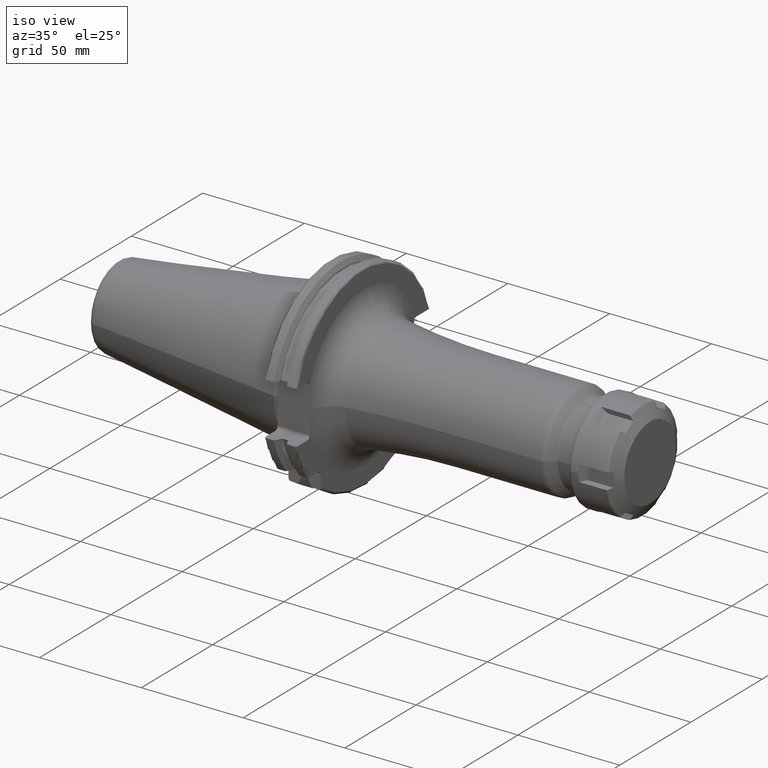
[diagram: clean part render]
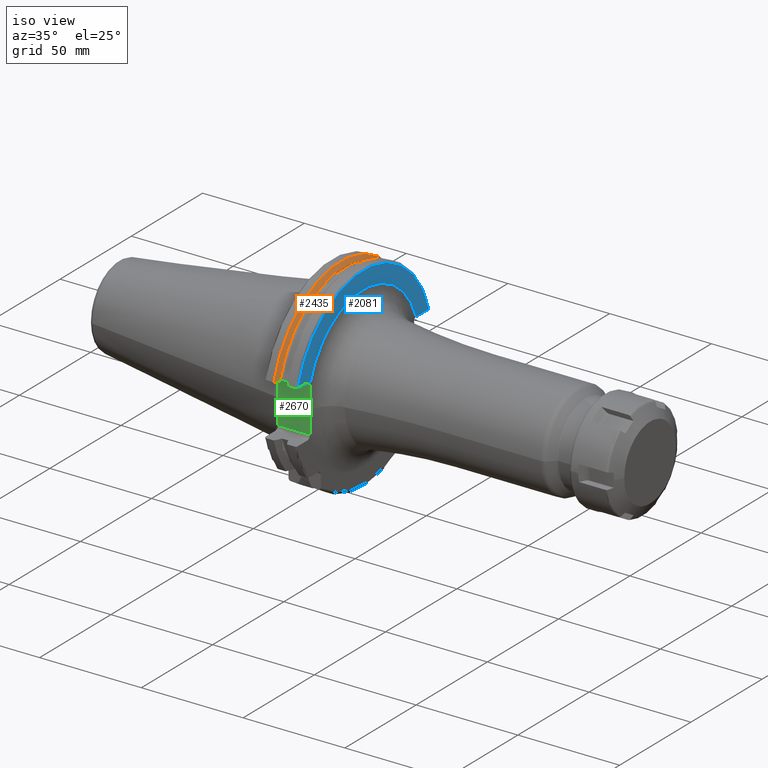
[diagram: same view with three faces highlighted in distinct colors, each labeled with its STEP entity id]
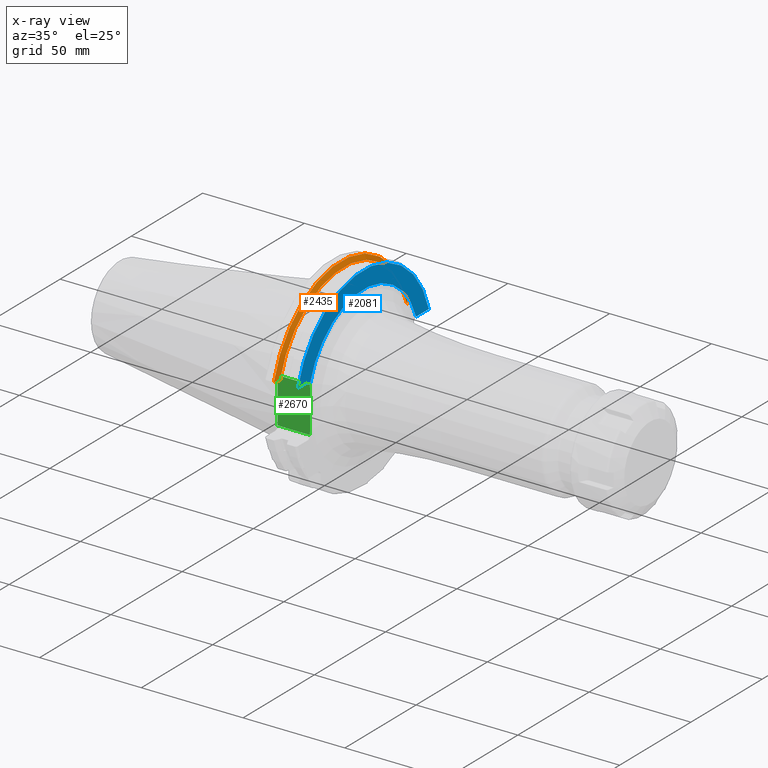
[diagram: x-ray of the same camera — body ghosted, the three highlighted faces saturated]
A machine part, iso view with three faces highlighted in distinct colors.
The next image is the same camera in x-ray (body ghosted, the three faces saturated) — at least one of them is partly hidden behind the body in this view.
Their STEP definitions:

[orange] entity #2435 — the highlighted conical surface has half-angle 60 deg.
#548=CARTESIAN_POINT('',(9.2625E0,0.E0,0.E0));
#549=DIRECTION('',(1.E0,0.E0,0.E0));
#550=DIRECTION('',(0.E0,9.606411165078E-1,2.777924499957E-1));
#551=AXIS2_PLACEMENT_3D('',#548,#549,#550);
#623=CARTESIAN_POINT('',(7.934621614173E0,0.E0,0.E0));
#624=DIRECTION('',(1.E0,0.E0,0.E0));
#625=DIRECTION('',(0.E0,9.643354064066E-1,2.646832521159E-1));
#626=AXIS2_PLACEMENT_3D('',#623,#624,#625);
#650=CARTESIAN_POINT('',(7.934621614173E0,4.699929686974E1,1.29E1));
#651=CARTESIAN_POINT('',(8.085480915039E0,4.672833723043E1,1.29E1));
#652=CARTESIAN_POINT('',(8.384988643814E0,4.619006057422E1,1.29E1));
#653=CARTESIAN_POINT('',(8.827579780447E0,4.539363402665E1,1.29E1));
#654=CARTESIAN_POINT('',(9.118260754177E0,4.486988275438E1,1.29E1));
#655=CARTESIAN_POINT('',(9.2625E0,4.460981716077E1,1.29E1));
#657=CARTESIAN_POINT('',(9.2625E0,-4.460981716077E1,1.29E1));
#658=CARTESIAN_POINT('',(9.118283773553E0,-4.486984125009E1,1.29E1));
#659=CARTESIAN_POINT('',(8.827633549554E0,-4.539353719098E1,1.29E1));
#660=CARTESIAN_POINT('',(8.385043355543E0,-4.618996220278E1,1.29E1));
#661=CARTESIAN_POINT('',(8.085504386120E0,-4.672829507383E1,1.29E1));
#662=CARTESIAN_POINT('',(7.934621614173E0,-4.699929686974E1,1.29E1));
#1460=CARTESIAN_POINT('',(9.2625E0,4.460981716077E1,1.29E1));
#1462=VERTEX_POINT('',#1460);
#1472=CARTESIAN_POINT('',(9.2625E0,-4.460981716077E1,1.29E1));
#1474=VERTEX_POINT('',#1472);
#1498=VERTEX_POINT('',#650);
#1499=VERTEX_POINT('',#662);
#2424=CARTESIAN_POINT('',(8.598560807087E0,0.E0,0.E0));
#2425=DIRECTION('',(-1.E0,0.E0,0.E0));
#2426=DIRECTION('',(0.E0,1.E0,0.E0));
#2427=AXIS2_PLACEMENT_3D('',#2424,#2425,#2426);
#2428=CONICAL_SURFACE('',#2427,4.758752358474E1,6.E1);
#2429=ORIENTED_EDGE('',*,*,#2362,.T.);
#2430=ORIENTED_EDGE('',*,*,#2307,.T.);
#2431=ORIENTED_EDGE('',*,*,#1934,.T.);
#2432=ORIENTED_EDGE('',*,*,#2403,.F.);
#2433=EDGE_LOOP('',(#2429,#2430,#2431,#2432));
#2434=FACE_OUTER_BOUND('',#2433,.F.);
#2435=ADVANCED_FACE('',(#2434),#2428,.T.);
#552=CIRCLE('',#551,4.643754716948E1);
#627=CIRCLE('',#626,4.87375E1);
#656=B_SPLINE_CURVE_WITH_KNOTS('',3,(#650,#651,#652,#653,#654,#655),
.UNSPECIFIED.,.F.,.F.,(4,1,1,4),(0.E0,3.333333333333E-1,6.666666666667E-1,1.E0),
.UNSPECIFIED.);
#663=B_SPLINE_CURVE_WITH_KNOTS('',3,(#657,#658,#659,#660,#661,#662),
.UNSPECIFIED.,.F.,.F.,(4,1,1,4),(0.E0,3.333333333333E-1,6.666666666667E-1,1.E0),
.UNSPECIFIED.);
#1934=EDGE_CURVE('',#1474,#1499,#663,.T.);
#2307=EDGE_CURVE('',#1462,#1474,#552,.T.);
#2362=EDGE_CURVE('',#1498,#1462,#656,.T.);
#2403=EDGE_CURVE('',#1498,#1499,#627,.T.);

[blue] entity #2081 — the highlighted planar face has unit normal (1, 0, 0).
#190=CARTESIAN_POINT('',(1.905E1,-3.752379451390E1,1.143758527476E1));
#201=CARTESIAN_POINT('',(1.905E1,-3.925E1,1.115E1));
#202=DIRECTION('',(-1.E0,0.E0,0.E0));
#203=DIRECTION('',(0.E0,0.E0,1.E0));
#204=AXIS2_PLACEMENT_3D('',#201,#202,#203);
#313=CARTESIAN_POINT('',(1.905E1,0.E0,0.E0));
#314=DIRECTION('',(1.E0,0.E0,0.E0));
#315=DIRECTION('',(0.E0,9.443838126307E-1,3.288452743179E-1));
#316=AXIS2_PLACEMENT_3D('',#313,#314,#315);
#318=DIRECTION('',(0.E0,1.E0,0.E0));
#319=VECTOR('',#318,6.711493733886E0);
#320=CARTESIAN_POINT('',(1.905E1,-4.596149373389E1,1.29E1));
#321=LINE('',#320,#319);
#322=DIRECTION('',(-1.355506760982E-6,-9.999999999985E-1,-1.081153342888E-6));
#323=VECTOR('',#322,8.913267196678E0);
#324=CARTESIAN_POINT('',(1.905E1,4.596149373389E1,1.29E1));
#325=LINE('',#324,#323);
#592=CARTESIAN_POINT('',(1.905E1,4.596149373389E1,1.29E1));
#603=CARTESIAN_POINT('',(1.905E1,0.E0,0.E0));
#604=DIRECTION('',(1.E0,0.E0,0.E0));
#605=DIRECTION('',(0.E0,9.627964123359E-1,2.702278083268E-1));
#606=AXIS2_PLACEMENT_3D('',#603,#604,#605);
#617=CARTESIAN_POINT('',(1.905E1,-4.596149373389E1,1.29E1));
#1529=VERTEX_POINT('',#592);
#1530=VERTEX_POINT('',#617);
#1565=CARTESIAN_POINT('',(1.905E1,-3.925E1,1.29E1));
#1567=VERTEX_POINT('',#1565);
#1637=VERTEX_POINT('',#190);
#1639=CARTESIAN_POINT('',(1.905E1,3.704644072429E1,1.289999553099E1));
#1640=VERTEX_POINT('',#1639);
#2067=CARTESIAN_POINT('',(1.905E1,0.E0,0.E0));
#2068=DIRECTION('',(1.E0,0.E0,0.E0));
#2069=DIRECTION('',(0.E0,-1.E0,0.E0));
#2070=AXIS2_PLACEMENT_3D('',#2067,#2068,#2069);
#2071=PLANE('',#2070);
#2072=ORIENTED_EDGE('',*,*,#1985,.T.);
#2073=ORIENTED_EDGE('',*,*,#1968,.F.);
#2074=ORIENTED_EDGE('',*,*,#1952,.F.);
#2076=ORIENTED_EDGE('',*,*,#2075,.F.);
#2078=ORIENTED_EDGE('',*,*,#2077,.T.);
#2079=EDGE_LOOP('',(#2072,#2073,#2074,#2076,#2078));
#2080=FACE_OUTER_BOUND('',#2079,.F.);
#2081=ADVANCED_FACE('',(#2080),#2071,.T.);
#205=CIRCLE('',#204,1.75E0);
#317=CIRCLE('',#316,3.922816150469E1);
#607=CIRCLE('',#606,4.77375E1);
#1952=EDGE_CURVE('',#1530,#1567,#321,.T.);
#1968=EDGE_CURVE('',#1567,#1637,#205,.T.);
#1985=EDGE_CURVE('',#1640,#1637,#317,.T.);
#2075=EDGE_CURVE('',#1529,#1530,#607,.T.);
#2077=EDGE_CURVE('',#1529,#1640,#325,.T.);

[green] entity #2670 — the highlighted planar face has unit normal (0, 1, 0).
#139=DIRECTION('',(0.E0,0.E0,1.E0));
#140=VECTOR('',#139,2.23E1);
#141=CARTESIAN_POINT('',(3.2E0,-3.75E1,-1.115E1));
#142=LINE('',#141,#140);
#194=CARTESIAN_POINT('',(1.905046490982E1,-3.75E1,1.115E1));
#206=CARTESIAN_POINT('',(1.905046490982E1,-3.75E1,1.115E1));
#207=CARTESIAN_POINT('',(1.905278634793E1,-3.75E1,1.022468875200E1));
#208=CARTESIAN_POINT('',(1.907413508688E1,-3.75E1,8.371629961405E0));
#209=CARTESIAN_POINT('',(1.912377027179E1,-3.75E1,5.577940526398E0));
#210=CARTESIAN_POINT('',(1.916469007427E1,-3.75E1,2.789986018816E0));
#211=CARTESIAN_POINT('',(1.917507724371E1,-3.75E1,9.322678847580E-1));
#212=CARTESIAN_POINT('',(1.917509122110E1,-3.75E1,3.879478832741E-3));
#259=CARTESIAN_POINT('',(1.917509122110E1,-3.75E1,3.879478832741E-3));
#260=CARTESIAN_POINT('',(1.917510521630E1,-3.75E1,-9.256925992130E-1));
#261=CARTESIAN_POINT('',(1.916474772933E1,-3.75E1,-2.785619568722E0));
#262=CARTESIAN_POINT('',(1.912379283916E1,-3.75E1,-5.576799437203E0));
#263=CARTESIAN_POINT('',(1.907411858053E1,-3.75E1,-8.372462470745E0));
#264=CARTESIAN_POINT('',(1.905278507759E1,-3.75E1,-1.022519509877E1));
#265=CARTESIAN_POINT('',(1.905046490982E1,-3.75E1,-1.115E1));
#954=CARTESIAN_POINT('',(1.905046490982E1,-3.75E1,-1.115E1));
#970=DIRECTION('',(-1.E0,0.E0,0.E0));
#971=VECTOR('',#970,1.585046490982E1);
#972=CARTESIAN_POINT('',(1.905046490982E1,-3.75E1,1.115E1));
#973=LINE('',#972,#971);
#974=DIRECTION('',(-1.E0,0.E0,0.E0));
#975=VECTOR('',#974,1.585046490982E1);
#976=CARTESIAN_POINT('',(1.905046490982E1,-3.75E1,-1.115E1));
#977=LINE('',#976,#975);
#1577=CARTESIAN_POINT('',(3.2E0,-3.75E1,-1.115E1));
#1578=CARTESIAN_POINT('',(3.2E0,-3.75E1,1.115E1));
#1579=VERTEX_POINT('',#1577);
#1580=VERTEX_POINT('',#1578);
#1632=VERTEX_POINT('',#954);
#1638=VERTEX_POINT('',#194);
#1641=VERTEX_POINT('',#212);
#2658=CARTESIAN_POINT('',(1.905E1,-3.75E1,-1.29E1));
#2659=DIRECTION('',(0.E0,1.E0,0.E0));
#2660=DIRECTION('',(0.E0,0.E0,1.E0));
#2661=AXIS2_PLACEMENT_3D('',#2658,#2659,#2660);
#2662=PLANE('',#2661);
#2663=ORIENTED_EDGE('',*,*,#1964,.F.);
#2664=ORIENTED_EDGE('',*,*,#1982,.T.);
#2665=ORIENTED_EDGE('',*,*,#2033,.T.);
#2666=ORIENTED_EDGE('',*,*,#2653,.T.);
#2667=ORIENTED_EDGE('',*,*,#1890,.T.);
#2668=EDGE_LOOP('',(#2663,#2664,#2665,#2666,#2667));
#2669=FACE_OUTER_BOUND('',#2668,.F.);
#2670=ADVANCED_FACE('',(#2669),#2662,.F.);
#213=B_SPLINE_CURVE_WITH_KNOTS('',3,(#206,#207,#208,#209,#210,#211,#212),
.UNSPECIFIED.,.F.,.F.,(4,1,1,1,4),(0.E0,2.5E-1,5.E-1,7.5E-1,1.E0),
.UNSPECIFIED.);
#266=B_SPLINE_CURVE_WITH_KNOTS('',3,(#259,#260,#261,#262,#263,#264,#265),
.UNSPECIFIED.,.F.,.F.,(4,1,1,1,4),(0.E0,2.5E-1,5.E-1,7.5E-1,1.E0),
.UNSPECIFIED.);
#1890=EDGE_CURVE('',#1579,#1580,#142,.T.);
#1964=EDGE_CURVE('',#1638,#1580,#973,.T.);
#1982=EDGE_CURVE('',#1638,#1641,#213,.T.);
#2033=EDGE_CURVE('',#1641,#1632,#266,.T.);
#2653=EDGE_CURVE('',#1632,#1579,#977,.T.);